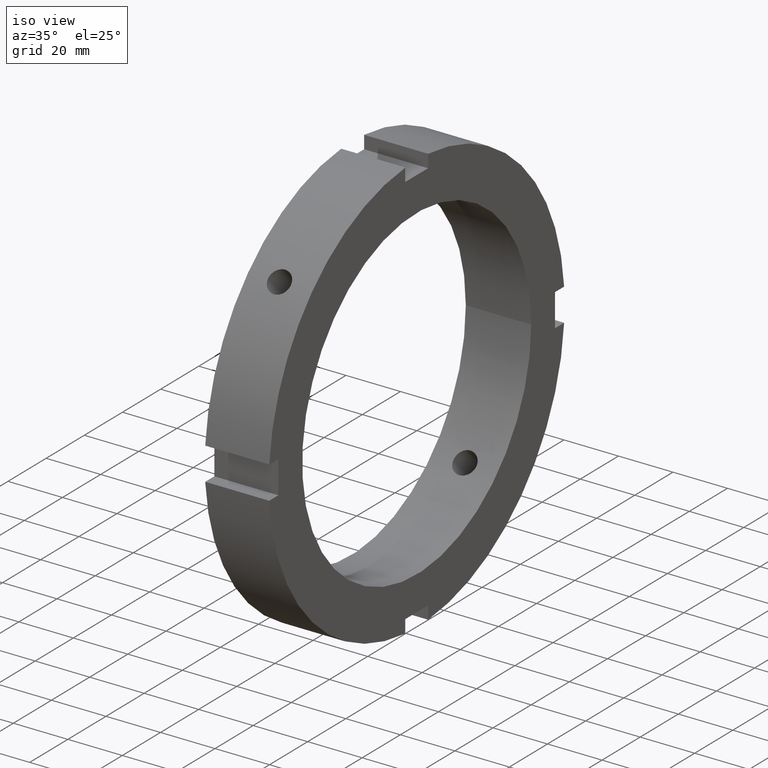
[diagram: clean part render]
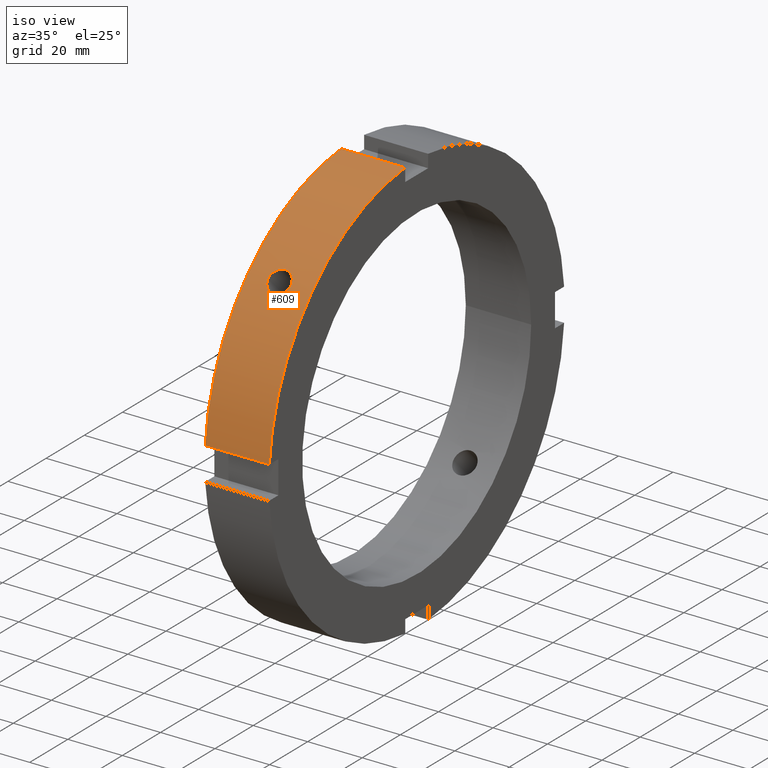
[diagram: same view with one face highlighted and labeled with its STEP entity id]
A machine part, iso view. The second image highlights one B-rep face of the part: STEP entity #609.
In plain terms, the highlighted cylindrical surface (partial cylindrical patch) has radius 77.5 mm, axis along (1, 0, 0).
Its self-contained STEP definition (entity closure, byte-faithful):
#73=CARTESIAN_POINT('',(11.999999999999989,-57.682066119071102,51.759339719852584));
#74=VERTEX_POINT('',#73);
#75=CARTESIAN_POINT('',(11.999999999999986,-57.682066119071081,51.759339719852598));
#76=CARTESIAN_POINT('',(11.474035406226147,-57.682066119071081,51.759339719852598));
#77=CARTESIAN_POINT('',(10.913082758774795,-57.611906106791324,51.837863223259426));
#78=CARTESIAN_POINT('',(9.881276424491720,-57.324773664769346,52.155211753345270));
#79=CARTESIAN_POINT('',(9.410414050548290,-57.107587558003914,52.393815128649322));
#80=CARTESIAN_POINT('',(8.666859657429365,-56.601920247396471,52.939692525152751));
#81=CARTESIAN_POINT('',(8.344567743117871,-56.279672044011150,53.283344345751537));
#82=CARTESIAN_POINT('',(7.917135080132649,-55.565167113603763,54.028034146033988));
#83=CARTESIAN_POINT('',(7.811999999999991,-55.172688565643554,54.428862518271316));
#84=CARTESIAN_POINT('',(7.811999999999984,-54.428862518271295,55.172688565643568));
#85=CARTESIAN_POINT('',(7.917135080132640,-54.028034146033974,55.565167113603792));
#86=CARTESIAN_POINT('',(8.344567743117858,-53.283344345751516,56.279672044011171));
#87=CARTESIAN_POINT('',(8.666859657429367,-52.939692525152736,56.601920247396492));
#88=CARTESIAN_POINT('',(9.410414050548290,-52.393815128649308,57.107587558003928));
#89=CARTESIAN_POINT('',(9.881276424491713,-52.155211753345235,57.324773664769381));
#90=CARTESIAN_POINT('',(10.913082758774795,-51.837863223259390,57.611906106791359));
#91=CARTESIAN_POINT('',(11.474035406226143,-51.759339719852562,57.682066119071138));
#92=CARTESIAN_POINT('',(12.525964593773832,-51.759339719852562,57.682066119071138));
#93=CARTESIAN_POINT('',(13.086917241225182,-51.837863223259390,57.611906106791359));
#94=CARTESIAN_POINT('',(14.118723575508266,-52.155211753345235,57.324773664769381));
#95=CARTESIAN_POINT('',(14.589585949451687,-52.393815128649308,57.107587558003928));
#96=CARTESIAN_POINT('',(15.333140342570610,-52.939692525152736,56.601920247396492));
#97=CARTESIAN_POINT('',(15.655432256882120,-53.283344345751516,56.279672044011164));
#98=CARTESIAN_POINT('',(16.082864919867337,-54.028034146033981,55.565167113603778));
#99=CARTESIAN_POINT('',(16.187999999999995,-54.428862518271295,55.172688565643568));
#100=CARTESIAN_POINT('',(16.187999999999985,-55.172688565643554,54.428862518271316));
#101=CARTESIAN_POINT('',(16.082864919867330,-55.565167113603763,54.028034146033988));
#102=CARTESIAN_POINT('',(15.655432256882110,-56.279672044011150,53.283344345751537));
#103=CARTESIAN_POINT('',(15.333140342570612,-56.601920247396471,52.939692525152751));
#104=CARTESIAN_POINT('',(14.589585949451687,-57.107587558003914,52.393815128649322));
#105=CARTESIAN_POINT('',(14.118723575508259,-57.324773664769346,52.155211753345270));
#106=CARTESIAN_POINT('',(13.086917241225182,-57.611906106791324,51.837863223259426));
#107=CARTESIAN_POINT('',(12.525964593773828,-57.682066119071081,51.759339719852598));
#108=CARTESIAN_POINT('',(11.999999999999989,-57.682066119071081,51.759339719852598));
#109=B_SPLINE_CURVE_WITH_KNOTS('',3,(#75,#76,#77,#78,#79,#80,#81,#82,#83,#84,#85,#86,#87,#88,#89,#90,#91,#92,#93,#94,#95,#96,#97,#98,#99,#100,#101,#102,#103,#104,#105,#106,#107,#108),.UNSPECIFIED.,.T.,.U.,(4,2,2,2,2,2,2,2,2,2,2,2,2,2,2,2,4),(0.0,0.157789378132152,0.315578756264305,0.473368088900338,0.631157421536371,0.788946754172404,0.946736086808437,1.104525464940591,1.262314843072744,1.420104221204897,1.577893599337051,1.735682931973084,1.893472264609117,2.051261597245150,2.209050929881183,2.366840308013336,2.524629686145488),.UNSPECIFIED.);
#110=EDGE_CURVE('',#74,#74,#109,.T.);
#353=CARTESIAN_POINT('',(0.499999999999980,-77.267392864001820,6.000000000000005));
#354=VERTEX_POINT('',#353);
#369=CARTESIAN_POINT('',(23.999999999999986,-77.267392864001820,6.000000000000005));
#370=VERTEX_POINT('',#369);
#377=CARTESIAN_POINT('',(0.499999999999979,-77.267392864001820,6.000000000000006));
#378=DIRECTION('',(1.0,0.0,0.0));
#379=VECTOR('',#378,23.500000000000007);
#380=LINE('',#377,#379);
#381=EDGE_CURVE('',#354,#370,#380,.T.);
#493=CARTESIAN_POINT('',(0.499999999999980,-5.999999999999992,77.267392864001820));
#494=VERTEX_POINT('',#493);
#503=CARTESIAN_POINT('',(23.999999999999986,-5.999999999999992,77.267392864001820));
#504=VERTEX_POINT('',#503);
#505=CARTESIAN_POINT('',(23.999999999999986,-5.999999999999992,77.267392864001820));
#506=DIRECTION('',(-1.0,0.0,0.0));
#507=VECTOR('',#506,23.500000000000007);
#508=LINE('',#505,#507);
#509=EDGE_CURVE('',#504,#494,#508,.T.);
#583=CARTESIAN_POINT('',(12.249999999999982,0.0,0.0));
#584=DIRECTION('',(1.0,0.0,0.0));
#585=DIRECTION('',(0.0,1.0,0.0));
#586=AXIS2_PLACEMENT_3D('',#583,#584,#585);
#587=CYLINDRICAL_SURFACE('',#586,77.500000000000000);
#588=ORIENTED_EDGE('',*,*,#381,.T.);
#589=CARTESIAN_POINT('',(23.999999999999986,0.0,0.0));
#590=DIRECTION('',(1.0,0.0,0.0));
#591=DIRECTION('',(0.0,1.0,0.0));
#592=AXIS2_PLACEMENT_3D('',#589,#590,#591);
#593=CIRCLE('',#592,77.500000000000000);
#594=EDGE_CURVE('',#504,#370,#593,.T.);
#595=ORIENTED_EDGE('',*,*,#594,.F.);
#596=ORIENTED_EDGE('',*,*,#509,.T.);
#597=CARTESIAN_POINT('',(0.499999999999980,0.0,0.0));
#598=DIRECTION('',(1.0,0.0,0.0));
#599=DIRECTION('',(0.0,1.0,0.0));
#600=AXIS2_PLACEMENT_3D('',#597,#598,#599);
#601=CIRCLE('',#600,77.500000000000000);
#602=EDGE_CURVE('',#494,#354,#601,.T.);
#603=ORIENTED_EDGE('',*,*,#602,.T.);
#604=EDGE_LOOP('',(#588,#595,#596,#603));
#605=FACE_OUTER_BOUND('',#604,.T.);
#606=ORIENTED_EDGE('',*,*,#110,.T.);
#607=EDGE_LOOP('',(#606));
#608=FACE_BOUND('',#607,.T.);
#609=ADVANCED_FACE('',(#605,#608),#587,.T.);